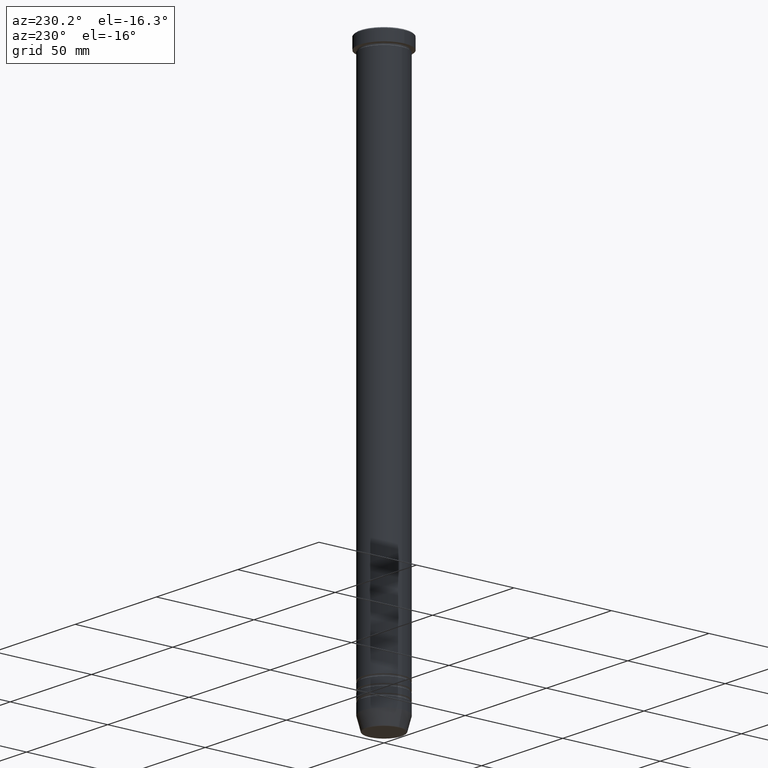
[diagram: clean part render]
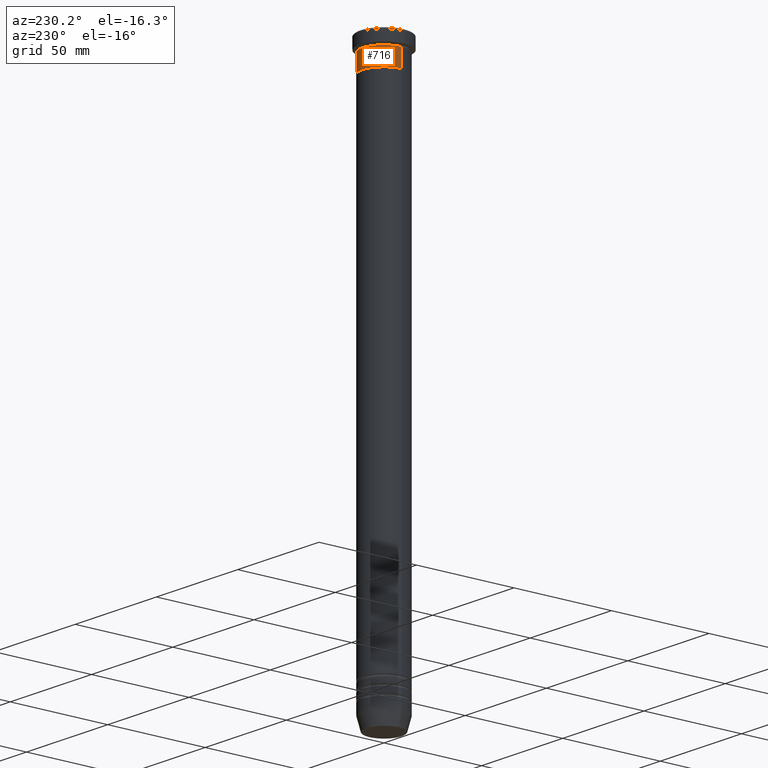
[diagram: same view with one face highlighted and labeled with its STEP entity id]
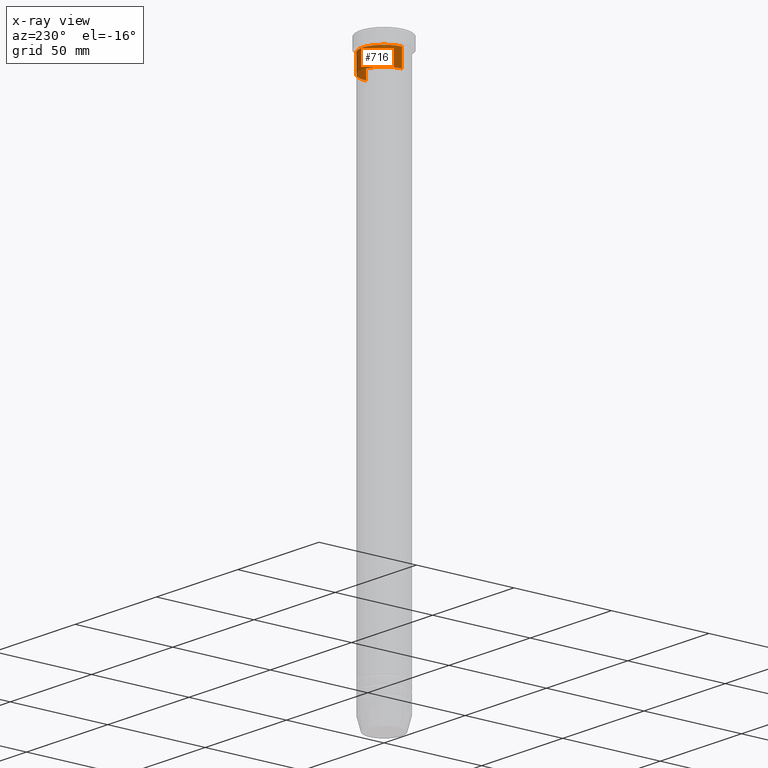
[diagram: x-ray of the same camera — body ghosted, the highlighted face saturated]
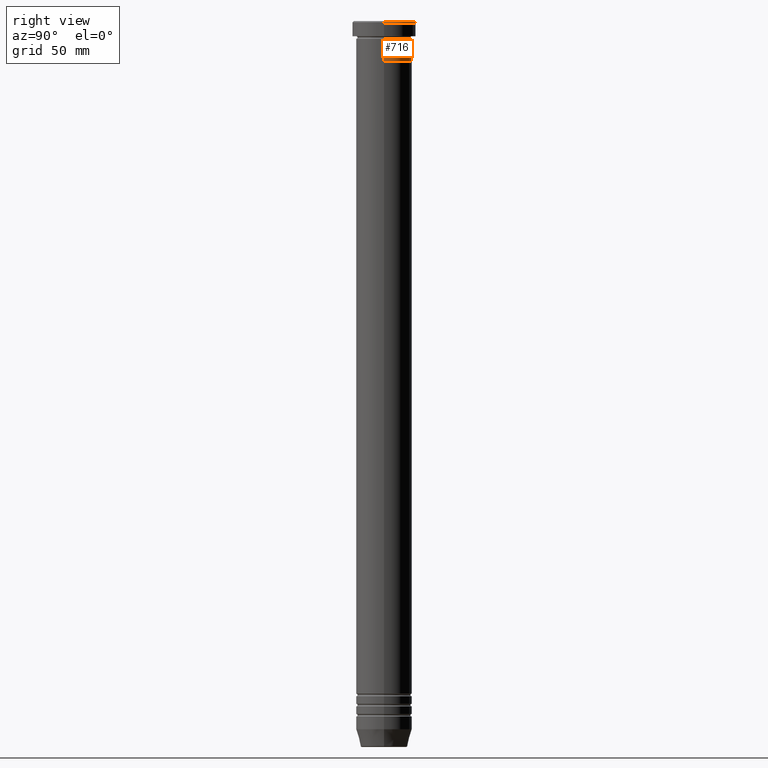
[diagram: same view with one face highlighted and labeled with its STEP entity id]
A machine part, auxiliary view. The second image highlights one B-rep face of the part: STEP entity #716.
The next image is the same camera in x-ray: the body ghosted, the highlighted face saturated — about 0% of this face is hidden behind the body in this view.
A second angle (right view) of the same face is appended — the face is thin or edge-on in the first view.
In plain terms, the highlighted cylindrical surface (edge-blend (fillet) strip) has radius 11 mm, axis along (-0, -0, 1).
Its self-contained STEP definition (entity closure, byte-faithful):
#1 = CARTESIAN_POINT ( 'NONE',  ( 11.00000000000000000, 0.000000000000000000, 0.000000000000000000 ) ) ;
#12 = VERTEX_POINT ( 'NONE', #1035 ) ;
#28 = LINE ( 'NONE', #1014, #610 ) ;
#48 = DIRECTION ( 'NONE',  ( -0.000000000000000000, -0.000000000000000000, 1.000000000000000000 ) ) ;
#171 = VECTOR ( 'NONE', #363, 1000.000000000000000 ) ;
#218 = AXIS2_PLACEMENT_3D ( 'NONE', #280, #270, #988 ) ;
#226 = ORIENTED_EDGE ( 'NONE', *, *, #765, .T. ) ;
#228 = EDGE_CURVE ( 'NONE', #1047, #12, #811, .T. ) ;
#254 = CARTESIAN_POINT ( 'NONE',  ( 11.00000000000000000, 0.000000000000000000, -16.00000000000000000 ) ) ;
#269 = ORIENTED_EDGE ( 'NONE', *, *, #1009, .T. ) ;
#270 = DIRECTION ( 'NONE',  ( -0.000000000000000000, -0.000000000000000000, 1.000000000000000000 ) ) ;
#279 = VERTEX_POINT ( 'NONE', #909 ) ;
#280 = CARTESIAN_POINT ( 'NONE',  ( 0.000000000000000000, 0.000000000000000000, 0.000000000000000000 ) ) ;
#363 = DIRECTION ( 'NONE',  ( -0.000000000000000000, -0.000000000000000000, 1.000000000000000000 ) ) ;
#456 = CIRCLE ( 'NONE', #977, 11.00000000000000000 ) ;
#495 = CARTESIAN_POINT ( 'NONE',  ( 0.000000000000000000, 0.000000000000000000, -6.999999999999999112 ) ) ;
#498 = DIRECTION ( 'NONE',  ( -0.000000000000000000, -0.000000000000000000, 1.000000000000000000 ) ) ;
#522 = EDGE_LOOP ( 'NONE', ( #226, #269, #915, #880 ) ) ;
#546 = CARTESIAN_POINT ( 'NONE',  ( 0.000000000000000000, 0.000000000000000000, -16.00000000000000000 ) ) ;
#569 = EDGE_CURVE ( 'NONE', #12, #848, #456, .T. ) ;
#597 = AXIS2_PLACEMENT_3D ( 'NONE', #546, #1069, #715 ) ;
#610 = VECTOR ( 'NONE', #48, 1000.000000000000000 ) ;
#626 = CIRCLE ( 'NONE', #597, 11.00000000000000000 ) ;
#715 = DIRECTION ( 'NONE',  ( 1.000000000000000000, 0.000000000000000000, 0.000000000000000000 ) ) ;
#716 = ADVANCED_FACE ( 'NONE', ( #730 ), #972, .T. ) ;
#730 = FACE_OUTER_BOUND ( 'NONE', #522, .T. ) ;
#744 = DIRECTION ( 'NONE',  ( 1.000000000000000000, 0.000000000000000000, 0.000000000000000000 ) ) ;
#765 = EDGE_CURVE ( 'NONE', #1047, #279, #626, .T. ) ;
#811 = LINE ( 'NONE', #1, #171 ) ;
#848 = VERTEX_POINT ( 'NONE', #1053 ) ;
#880 = ORIENTED_EDGE ( 'NONE', *, *, #228, .F. ) ;
#909 = CARTESIAN_POINT ( 'NONE',  ( -11.00000000000000000, 1.347111479062088405E-15, -16.00000000000000000 ) ) ;
#915 = ORIENTED_EDGE ( 'NONE', *, *, #569, .F. ) ;
#972 = CYLINDRICAL_SURFACE ( 'NONE', #218, 11.00000000000000000 ) ;
#977 = AXIS2_PLACEMENT_3D ( 'NONE', #495, #498, #744 ) ;
#988 = DIRECTION ( 'NONE',  ( 1.000000000000000000, 0.000000000000000000, 0.000000000000000000 ) ) ;
#1009 = EDGE_CURVE ( 'NONE', #279, #848, #28, .T. ) ;
#1014 = CARTESIAN_POINT ( 'NONE',  ( -11.00000000000000000, 1.347111479062088405E-15, 0.000000000000000000 ) ) ;
#1035 = CARTESIAN_POINT ( 'NONE',  ( 11.00000000000000000, 0.000000000000000000, -6.999999999999999112 ) ) ;
#1047 = VERTEX_POINT ( 'NONE', #254 ) ;
#1053 = CARTESIAN_POINT ( 'NONE',  ( -11.00000000000000000, 1.347111479062088405E-15, -6.999999999999999112 ) ) ;
#1069 = DIRECTION ( 'NONE',  ( -0.000000000000000000, -0.000000000000000000, 1.000000000000000000 ) ) ;